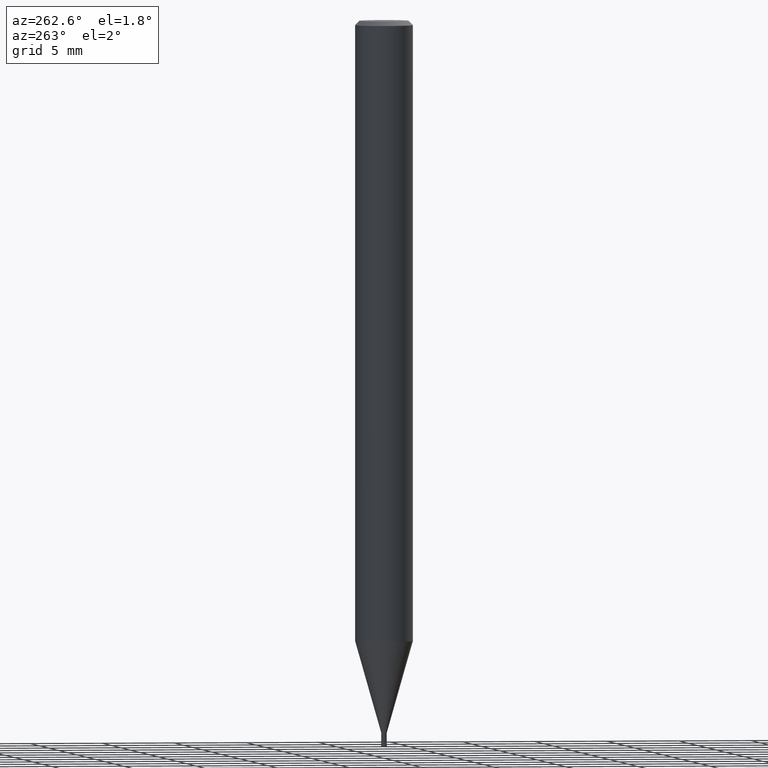
[diagram: clean part render]
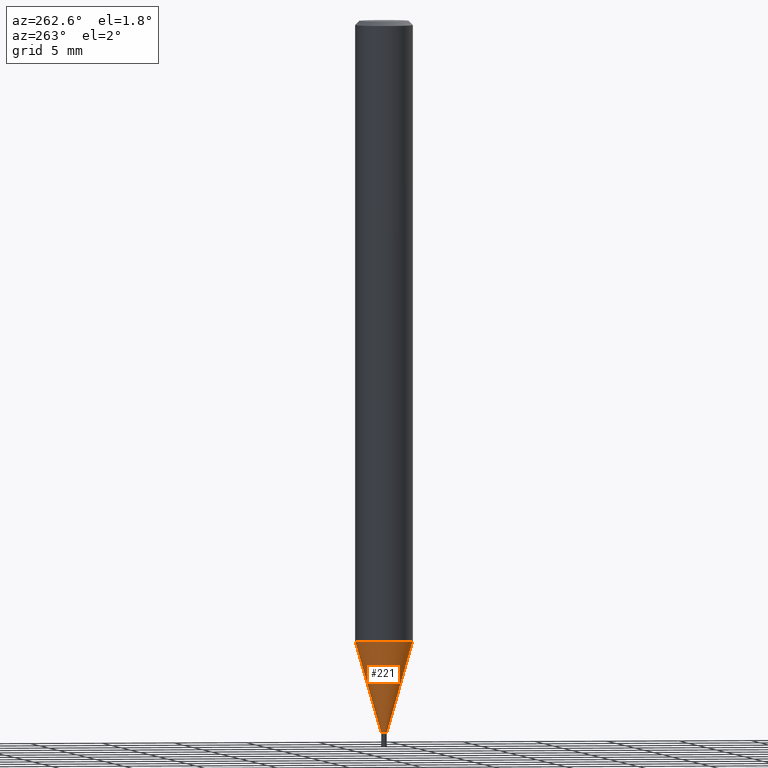
[diagram: same view with one face highlighted and labeled with its STEP entity id]
A machine part, auxiliary view. The second image highlights one B-rep face of the part: STEP entity #221.
In plain terms, the highlighted conical surface has half-angle 15.999 deg.
Its self-contained STEP definition (entity closure, byte-faithful):
#161=VERTEX_POINT('',#399);
#165=EDGE_CURVE('',#225,#161,#403,.T.);
#199=EDGE_CURVE('',#225,#205,#442,.T.);
#205=VERTEX_POINT('',#448);
#221=ADVANCED_FACE('',(#465),#466,.T.);
#225=VERTEX_POINT('',#470);
#267=EDGE_CURVE('',#161,#349,#521,.T.);
#269=EDGE_CURVE('',#349,#205,#523,.T.);
#349=VERTEX_POINT('',#614);
#399=CARTESIAN_POINT('',(2.44915147732706E-016,-1.99995,-42.686));
#403=LINE('',#664,#665);
#442=CIRCLE('',#719,0.19245);
#448=CARTESIAN_POINT('',(0.0,0.19245,-48.99));
#465=FACE_OUTER_BOUND('',#749,.T.);
#466=CONICAL_SURFACE('',#750,1.0962,0.279231732547063);
#470=CARTESIAN_POINT('',(2.35675492793117E-017,-0.19245,-48.99));
#521=CIRCLE('',#815,1.99995);
#523=LINE('',#818,#819);
#614=CARTESIAN_POINT('',(0.0,1.99995,-42.686));
#664=CARTESIAN_POINT('',(1.34241348506009E-016,-1.0962,-45.838));
#665=VECTOR('',#973,1.0);
#719=AXIS2_PLACEMENT_3D('',#1028,#1029,#1030);
#749=EDGE_LOOP('',(#1056,#1057,#1058,#1059));
#750=AXIS2_PLACEMENT_3D('',#1060,#1061,#1062);
#815=AXIS2_PLACEMENT_3D('',#1136,#1137,#1138);
#818=CARTESIAN_POINT('',(-1.34241348506009E-016,1.0962,-45.838));
#819=VECTOR('',#1139,1.0);
#973=DIRECTION('',(3.375225981805E-017,-0.275617219465657,0.961267469715906));
#1028=CARTESIAN_POINT('',(0.0,0.0,-48.99));
#1029=DIRECTION('',(0.0,0.0,-1.0));
#1030=DIRECTION('',(0.0,1.0,0.0));
#1056=ORIENTED_EDGE('',*,*,#269,.T.);
#1057=ORIENTED_EDGE('',*,*,#199,.F.);
#1058=ORIENTED_EDGE('',*,*,#165,.T.);
#1059=ORIENTED_EDGE('',*,*,#267,.T.);
#1060=CARTESIAN_POINT('',(0.0,0.0,-45.838));
#1061=DIRECTION('',(-0.0,-0.0,1.0));
#1062=DIRECTION('',(0.0,1.0,0.0));
#1136=CARTESIAN_POINT('',(0.0,0.0,-42.686));
#1137=DIRECTION('',(0.0,0.0,-1.0));
#1138=DIRECTION('',(0.0,1.0,0.0));
#1139=DIRECTION('',(3.375225981805E-017,-0.275617219465657,-0.961267469715906));